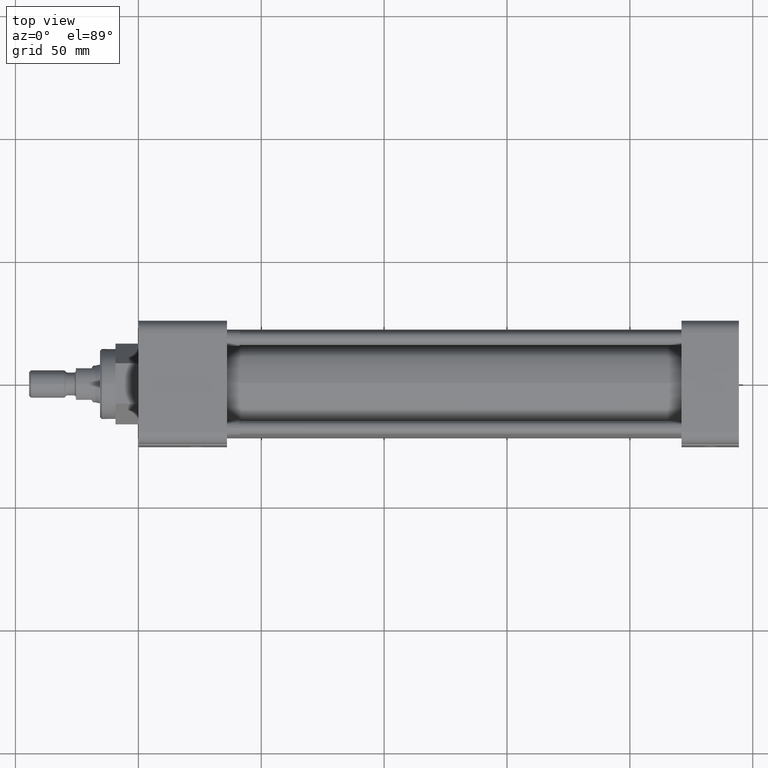
[diagram: clean part render]
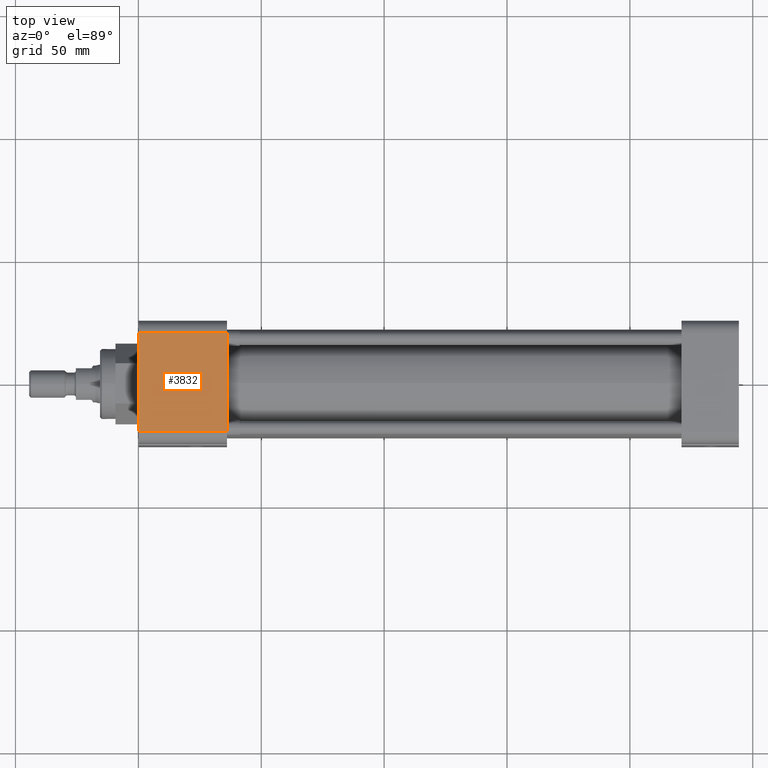
[diagram: same view with one face highlighted and labeled with its STEP entity id]
A machine part, top view. The second image highlights one B-rep face of the part: STEP entity #3832.
In plain terms, the highlighted planar face has unit normal (0, 0, -1).
Its self-contained STEP definition (entity closure, byte-faithful):
#1218 = VERTEX_POINT ( 'NONE', #9617 ) ;
#1697 = ORIENTED_EDGE ( 'NONE', *, *, #5889, .F. ) ;
#2529 = ORIENTED_EDGE ( 'NONE', *, *, #6456, .F. ) ;
#3521 = LINE ( 'NONE', #14373, #12659 ) ;
#3707 = DIRECTION ( 'NONE',  ( 0.0000000000000000000, 0.0000000000000000000, -1.000000000000000000 ) ) ;
#3832 = ADVANCED_FACE ( 'NONE', ( #6181 ), #5906, .F. ) ;
#3994 = DIRECTION ( 'NONE',  ( 0.0000000000000000000, 1.000000000000000000, 0.0000000000000000000 ) ) ;
#4784 = ORIENTED_EDGE ( 'NONE', *, *, #11851, .F. ) ;
#5563 = CARTESIAN_POINT ( 'NONE',  ( 1.419999999999999900, -0.7750000000000000200, 1.000000000000000200 ) ) ;
#5889 = EDGE_CURVE ( 'NONE', #6582, #8974, #11684, .T. ) ;
#5906 = PLANE ( 'NONE',  #6015 ) ;
#6015 = AXIS2_PLACEMENT_3D ( 'NONE', #10558, #3707, #11711 ) ;
#6181 = FACE_OUTER_BOUND ( 'NONE', #14215, .T. ) ;
#6456 = EDGE_CURVE ( 'NONE', #1218, #12789, #3521, .T. ) ;
#6582 = VERTEX_POINT ( 'NONE', #14506 ) ;
#6850 = ORIENTED_EDGE ( 'NONE', *, *, #11351, .F. ) ;
#6963 = CARTESIAN_POINT ( 'NONE',  ( 1.419999999999999900, 0.8000000000000000400, 1.000000000000000000 ) ) ;
#7524 = DIRECTION ( 'NONE',  ( 1.000000000000000000, -0.0000000000000000000, 0.0000000000000000000 ) ) ;
#8475 = CARTESIAN_POINT ( 'NONE',  ( 1.419999999999999900, 0.8000000000000000400, 1.000000000000000000 ) ) ;
#8974 = VERTEX_POINT ( 'NONE', #13056 ) ;
#9110 = VECTOR ( 'NONE', #3994, 39.37007874015748100 ) ;
#9617 = CARTESIAN_POINT ( 'NONE',  ( 0.0000000000000000000, 0.8000000000000000400, 1.000000000000000000 ) ) ;
#9657 = CARTESIAN_POINT ( 'NONE',  ( 0.0000000000000000000, 0.8000000000000000400, 1.000000000000000000 ) ) ;
#10297 = VECTOR ( 'NONE', #13813, 39.37007874015748100 ) ;
#10558 = CARTESIAN_POINT ( 'NONE',  ( 1.419999999999999900, 0.8000000000000000400, 1.000000000000000000 ) ) ;
#11262 = DIRECTION ( 'NONE',  ( -1.000000000000000000, 0.0000000000000000000, 0.0000000000000000000 ) ) ;
#11351 = EDGE_CURVE ( 'NONE', #8974, #1218, #12168, .T. ) ;
#11684 = LINE ( 'NONE', #5563, #14363 ) ;
#11711 = DIRECTION ( 'NONE',  ( -1.000000000000000000, 0.0000000000000000000, -0.0000000000000000000 ) ) ;
#11851 = EDGE_CURVE ( 'NONE', #12789, #6582, #13345, .T. ) ;
#12168 = LINE ( 'NONE', #9657, #9110 ) ;
#12659 = VECTOR ( 'NONE', #7524, 39.37007874015748100 ) ;
#12789 = VERTEX_POINT ( 'NONE', #8475 ) ;
#13056 = CARTESIAN_POINT ( 'NONE',  ( 0.0000000000000000000, -0.7750000000000000200, 1.000000000000000000 ) ) ;
#13345 = LINE ( 'NONE', #6963, #10297 ) ;
#13813 = DIRECTION ( 'NONE',  ( 0.0000000000000000000, -1.000000000000000000, -0.0000000000000000000 ) ) ;
#14215 = EDGE_LOOP ( 'NONE', ( #1697, #4784, #2529, #6850 ) ) ;
#14363 = VECTOR ( 'NONE', #11262, 39.37007874015748100 ) ;
#14373 = CARTESIAN_POINT ( 'NONE',  ( 1.419999999999999900, 0.8000000000000000400, 1.000000000000000000 ) ) ;
#14506 = CARTESIAN_POINT ( 'NONE',  ( 1.419999999999999900, -0.7750000000000000200, 1.000000000000000000 ) ) ;